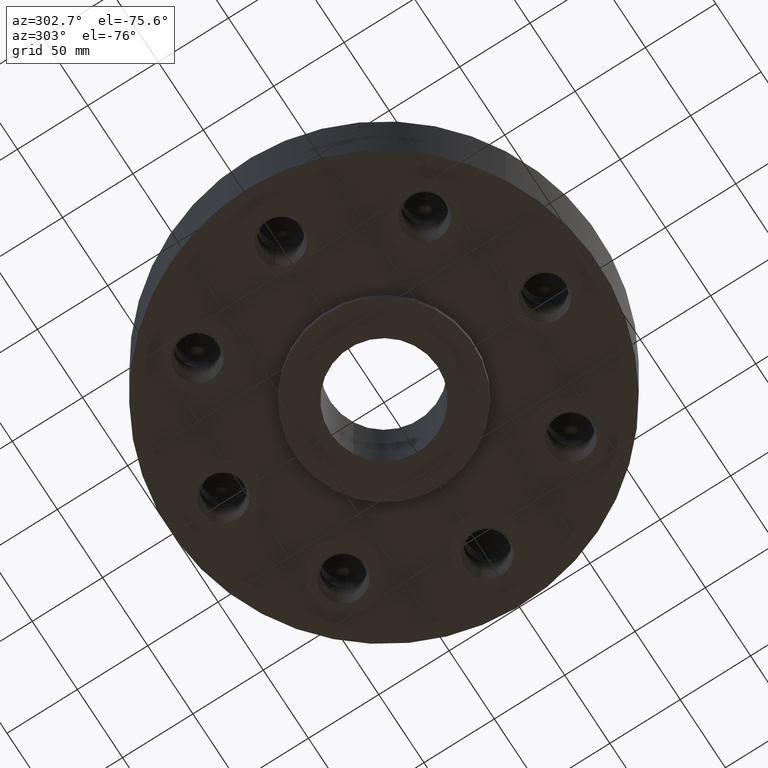
[diagram: clean part render]
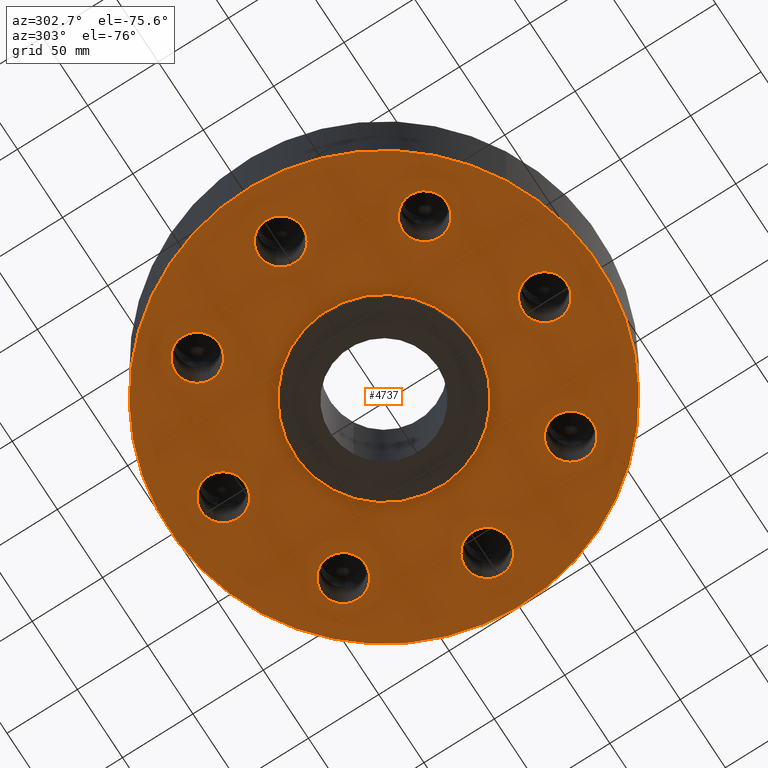
[diagram: same view with one face highlighted and labeled with its STEP entity id]
A machine part, auxiliary view. The second image highlights one B-rep face of the part: STEP entity #4737.
In plain terms, the highlighted planar face has unit normal (0, 0, -1).
Its self-contained STEP definition (entity closure, byte-faithful):
#4304=AXIS2_PLACEMENT_3D('Circle Axis2P3D',#4302,#4303,$) ;
#4324=AXIS2_PLACEMENT_3D('Circle Axis2P3D',#4322,#4323,$) ;
#4344=AXIS2_PLACEMENT_3D('Circle Axis2P3D',#4342,#4343,$) ;
#4356=AXIS2_PLACEMENT_3D('Plane Axis2P3D',#4353,#4354,#4355) ;
#4360=AXIS2_PLACEMENT_3D('Circle Axis2P3D',#4358,#4359,$) ;
#4369=AXIS2_PLACEMENT_3D('Circle Axis2P3D',#4367,#4368,$) ;
#4385=AXIS2_PLACEMENT_3D('Circle Axis2P3D',#4383,#4384,$) ;
#4394=AXIS2_PLACEMENT_3D('Circle Axis2P3D',#4392,#4393,$) ;
#4403=AXIS2_PLACEMENT_3D('Circle Axis2P3D',#4401,#4402,$) ;
#4412=AXIS2_PLACEMENT_3D('Circle Axis2P3D',#4410,#4411,$) ;
#4419=AXIS2_PLACEMENT_3D('Circle Axis2P3D',#4417,#4418,$) ;
#4451=AXIS2_PLACEMENT_3D('Circle Axis2P3D',#4449,#4450,$) ;
#4460=AXIS2_PLACEMENT_3D('Circle Axis2P3D',#4458,#4459,$) ;
#4467=AXIS2_PLACEMENT_3D('Circle Axis2P3D',#4465,#4466,$) ;
#4499=AXIS2_PLACEMENT_3D('Circle Axis2P3D',#4497,#4498,$) ;
#4508=AXIS2_PLACEMENT_3D('Circle Axis2P3D',#4506,#4507,$) ;
#4515=AXIS2_PLACEMENT_3D('Circle Axis2P3D',#4513,#4514,$) ;
#4547=AXIS2_PLACEMENT_3D('Circle Axis2P3D',#4545,#4546,$) ;
#4556=AXIS2_PLACEMENT_3D('Circle Axis2P3D',#4554,#4555,$) ;
#4563=AXIS2_PLACEMENT_3D('Circle Axis2P3D',#4561,#4562,$) ;
#4595=AXIS2_PLACEMENT_3D('Circle Axis2P3D',#4593,#4594,$) ;
#4604=AXIS2_PLACEMENT_3D('Circle Axis2P3D',#4602,#4603,$) ;
#4611=AXIS2_PLACEMENT_3D('Circle Axis2P3D',#4609,#4610,$) ;
#4643=AXIS2_PLACEMENT_3D('Circle Axis2P3D',#4641,#4642,$) ;
#4652=AXIS2_PLACEMENT_3D('Circle Axis2P3D',#4650,#4651,$) ;
#4659=AXIS2_PLACEMENT_3D('Circle Axis2P3D',#4657,#4658,$) ;
#4691=AXIS2_PLACEMENT_3D('Circle Axis2P3D',#4689,#4690,$) ;
#4700=AXIS2_PLACEMENT_3D('Circle Axis2P3D',#4698,#4699,$) ;
#4707=AXIS2_PLACEMENT_3D('Circle Axis2P3D',#4705,#4706,$) ;
#4021=CARTESIAN_POINT('Vertex',(3.18198051535,2.55698051535,-3.58199908929E-014)) ;
#4240=CARTESIAN_POINT('Vertex',(3.25873607268,2.56423069996,0.)) ;
#4244=CARTESIAN_POINT('Control Point',(3.18198051535,2.55698051535,-3.57937651522E-014)) ;
#4245=CARTESIAN_POINT('Control Point',(3.20770871475,2.55781348545,-3.57933954732E-014)) ;
#4246=CARTESIAN_POINT('Control Point',(3.2333606404,2.56023796833,-5.5872213125E-012)) ;
#4247=CARTESIAN_POINT('Control Point',(3.25873603664,2.56423061022,-5.54177001751E-012)) ;
#4277=CARTESIAN_POINT('Control Point',(3.18198051535,2.55698051535,1.31128703614E-017)) ;
#4278=CARTESIAN_POINT('Control Point',(3.15626858779,2.55781295862,1.36054639739E-017)) ;
#4279=CARTESIAN_POINT('Control Point',(3.13063258452,2.56023495611,-3.87205028355E-011)) ;
#4280=CARTESIAN_POINT('Control Point',(3.10526891302,2.56422507147,-1.17698683258E-010)) ;
#4281=CARTESIAN_POINT('Vertex',(3.10526892041,2.56422523921,0.)) ;
#4302=CARTESIAN_POINT('Axis2P3D Location',(3.18198051535,3.18198051535,0.)) ;
#4306=CARTESIAN_POINT('Vertex',(2.63568537057,2.88353811757,0.)) ;
#4322=CARTESIAN_POINT('Axis2P3D Location',(3.18198051535,3.18198051535,0.)) ;
#4326=CARTESIAN_POINT('Vertex',(3.72827566013,3.48042291313,0.)) ;
#4342=CARTESIAN_POINT('Axis2P3D Location',(3.18198051535,3.18198051535,0.)) ;
#4353=CARTESIAN_POINT('Axis2P3D Location',(0.,6.00000000002,0.)) ;
#4358=CARTESIAN_POINT('Axis2P3D Location',(0.,0.,0.)) ;
#4362=CARTESIAN_POINT('Vertex',(-2.87655323164,-5.26549537136,-3.9583384689E-014)) ;
#4364=CARTESIAN_POINT('Vertex',(2.87655323164,5.26549537136,-3.9583384689E-014)) ;
#4367=CARTESIAN_POINT('Axis2P3D Location',(0.,0.,0.)) ;
#4383=CARTESIAN_POINT('Axis2P3D Location',(0.,0.,0.)) ;
#4387=CARTESIAN_POINT('Vertex',(1.19856384652,2.19395640473,-2.83937353069E-014)) ;
#4389=CARTESIAN_POINT('Vertex',(-1.19856384652,-2.19395640473,-2.83937353069E-014)) ;
#4392=CARTESIAN_POINT('Axis2P3D Location',(0.,0.,0.)) ;
#4401=CARTESIAN_POINT('Axis2P3D Location',(4.50000000002,1.1189649382E-015,0.)) ;
#4405=CARTESIAN_POINT('Vertex',(5.09731964469,-0.175258358137,0.)) ;
#4407=CARTESIAN_POINT('Vertex',(4.11745929156,-0.491089458625,0.)) ;
#4410=CARTESIAN_POINT('Axis2P3D Location',(4.50000000002,0.,0.)) ;
#4414=CARTESIAN_POINT('Vertex',(3.90268035535,0.175258358137,1.48612530855E-016)) ;
#4417=CARTESIAN_POINT('Axis2P3D Location',(4.50000000002,1.1189649382E-015,0.)) ;
#4421=CARTESIAN_POINT('Vertex',(4.00893776617,-0.382575655905,0.)) ;
#4425=CARTESIAN_POINT('Control Point',(4.05805826177,-0.441941738243,0.)) ;
#4426=CARTESIAN_POINT('Control Point',(4.04750279054,-0.430679915473,0.)) ;
#4427=CARTESIAN_POINT('Control Point',(4.03730014764,-0.419097395786,0.)) ;
#4428=CARTESIAN_POINT('Control Point',(4.02746366877,-0.407208759773,0.)) ;
#4429=CARTESIAN_POINT('Control Point',(4.01800574792,-0.395029457231,0.)) ;
#4430=CARTESIAN_POINT('Control Point',(4.00893776617,-0.382575655905,0.)) ;
#4431=CARTESIAN_POINT('Vertex',(4.05805826177,-0.441941738243,-3.58199908929E-014)) ;
#4435=CARTESIAN_POINT('Control Point',(4.05805826177,-0.441941738243,0.)) ;
#4436=CARTESIAN_POINT('Control Point',(4.06932721162,-0.452503889519,0.)) ;
#4437=CARTESIAN_POINT('Control Point',(4.0809172647,-0.462712765541,0.)) ;
#4438=CARTESIAN_POINT('Control Point',(4.09281329542,-0.472554824069,0.)) ;
#4439=CARTESIAN_POINT('Control Point',(4.10499945806,-0.482017537797,0.)) ;
#4440=CARTESIAN_POINT('Control Point',(4.11745929156,-0.491089458625,0.)) ;
#4449=CARTESIAN_POINT('Axis2P3D Location',(3.18198051535,-3.18198051535,0.)) ;
#4453=CARTESIAN_POINT('Vertex',(3.48042291313,-3.72827566013,0.)) ;
#4455=CARTESIAN_POINT('Vertex',(2.56423069996,-3.25873607268,0.)) ;
#4458=CARTESIAN_POINT('Axis2P3D Location',(3.18198051535,-3.18198051535,0.)) ;
#4462=CARTESIAN_POINT('Vertex',(2.88353811757,-2.63568537057,0.)) ;
#4465=CARTESIAN_POINT('Axis2P3D Location',(3.18198051535,-3.18198051535,0.)) ;
#4469=CARTESIAN_POINT('Vertex',(2.56422523921,-3.10526892041,0.)) ;
#4473=CARTESIAN_POINT('Control Point',(2.55698051535,-3.18198051535,0.)) ;
#4474=CARTESIAN_POINT('Control Point',(2.55747998131,-3.16655335881,0.)) ;
#4475=CARTESIAN_POINT('Control Point',(2.55845570154,-3.15114892261,0.)) ;
#4476=CARTESIAN_POINT('Control Point',(2.55990679578,-3.13578694656,0.)) ;
#4477=CARTESIAN_POINT('Control Point',(2.56183110322,-3.12048711917,0.)) ;
#4478=CARTESIAN_POINT('Control Point',(2.56422523921,-3.10526892041,0.)) ;
#4479=CARTESIAN_POINT('Vertex',(2.55698051535,-3.18198051535,-3.58199908929E-014)) ;
#4483=CARTESIAN_POINT('Control Point',(2.55698051535,-3.18198051535,0.)) ;
#4484=CARTESIAN_POINT('Control Point',(2.55748029741,-3.19741743499,0.)) ;
#4485=CARTESIAN_POINT('Control Point',(2.55845693708,-3.21283160559,0.)) ;
#4486=CARTESIAN_POINT('Control Point',(2.55990931474,-3.22820275591,0.)) ;
#4487=CARTESIAN_POINT('Control Point',(2.56183508394,-3.24351082319,0.)) ;
#4488=CARTESIAN_POINT('Control Point',(2.56423069996,-3.25873607268,0.)) ;
#4497=CARTESIAN_POINT('Axis2P3D Location',(7.69288395016E-016,-4.50000000002,0.)) ;
#4501=CARTESIAN_POINT('Vertex',(-0.175258358137,-5.09731964469,0.)) ;
#4503=CARTESIAN_POINT('Vertex',(-0.491089458625,-4.11745929156,0.)) ;
#4506=CARTESIAN_POINT('Axis2P3D Location',(1.18890024684E-015,-4.50000000002,0.)) ;
#4510=CARTESIAN_POINT('Vertex',(0.175258358137,-3.90268035535,0.)) ;
#4513=CARTESIAN_POINT('Axis2P3D Location',(7.69288395016E-016,-4.50000000002,0.)) ;
#4517=CARTESIAN_POINT('Vertex',(-0.382575655901,-4.00893776617,0.)) ;
#4521=CARTESIAN_POINT('Control Point',(-0.441941738243,-4.05805826177,0.)) ;
#4522=CARTESIAN_POINT('Control Point',(-0.430679915473,-4.04750279054,0.)) ;
#4523=CARTESIAN_POINT('Control Point',(-0.419097395785,-4.03730014764,0.)) ;
#4524=CARTESIAN_POINT('Control Point',(-0.407208759771,-4.02746366877,0.)) ;
#4525=CARTESIAN_POINT('Control Point',(-0.395029457228,-4.01800574792,0.)) ;
#4526=CARTESIAN_POINT('Control Point',(-0.382575655901,-4.00893776617,0.)) ;
#4527=CARTESIAN_POINT('Vertex',(-0.441941738243,-4.05805826177,-3.58199908929E-014)) ;
#4531=CARTESIAN_POINT('Control Point',(-0.441941738243,-4.05805826177,0.)) ;
#4532=CARTESIAN_POINT('Control Point',(-0.452503889519,-4.06932721162,0.)) ;
#4533=CARTESIAN_POINT('Control Point',(-0.46271276554,-4.0809172647,0.)) ;
#4534=CARTESIAN_POINT('Control Point',(-0.472554824068,-4.09281329542,0.)) ;
#4535=CARTESIAN_POINT('Control Point',(-0.482017537797,-4.10499945806,0.)) ;
#4536=CARTESIAN_POINT('Control Point',(-0.491089458625,-4.11745929156,0.)) ;
#4545=CARTESIAN_POINT('Axis2P3D Location',(-3.18198051535,-3.18198051535,0.)) ;
#4549=CARTESIAN_POINT('Vertex',(-3.72827566013,-3.48042291313,0.)) ;
#4551=CARTESIAN_POINT('Vertex',(-3.25873607269,-2.56423069996,0.)) ;
#4554=CARTESIAN_POINT('Axis2P3D Location',(-3.18198051535,-3.18198051535,0.)) ;
#4558=CARTESIAN_POINT('Vertex',(-2.63568537057,-2.88353811757,0.)) ;
#4561=CARTESIAN_POINT('Axis2P3D Location',(-3.18198051535,-3.18198051535,0.)) ;
#4565=CARTESIAN_POINT('Vertex',(-3.10526892041,-2.56422523921,0.)) ;
#4569=CARTESIAN_POINT('Control Point',(-3.18198051535,-2.55698051535,0.)) ;
#4570=CARTESIAN_POINT('Control Point',(-3.16655335881,-2.55747998131,0.)) ;
#4571=CARTESIAN_POINT('Control Point',(-3.15114892261,-2.55845570154,0.)) ;
#4572=CARTESIAN_POINT('Control Point',(-3.13578694656,-2.55990679578,0.)) ;
#4573=CARTESIAN_POINT('Control Point',(-3.12048711917,-2.56183110322,0.)) ;
#4574=CARTESIAN_POINT('Control Point',(-3.10526892041,-2.56422523921,0.)) ;
#4575=CARTESIAN_POINT('Vertex',(-3.18198051535,-2.55698051535,-3.58199908929E-014)) ;
#4579=CARTESIAN_POINT('Control Point',(-3.18198051535,-2.55698051535,0.)) ;
#4580=CARTESIAN_POINT('Control Point',(-3.19741743499,-2.55748029741,0.)) ;
#4581=CARTESIAN_POINT('Control Point',(-3.21283160559,-2.55845693708,0.)) ;
#4582=CARTESIAN_POINT('Control Point',(-3.22820275591,-2.55990931474,0.)) ;
#4583=CARTESIAN_POINT('Control Point',(-3.2435108232,-2.56183508394,0.)) ;
#4584=CARTESIAN_POINT('Control Point',(-3.25873607269,-2.56423069996,0.)) ;
#4593=CARTESIAN_POINT('Axis2P3D Location',(-4.50000000002,0.,0.)) ;
#4597=CARTESIAN_POINT('Vertex',(-5.09731964469,0.175258358137,0.)) ;
#4599=CARTESIAN_POINT('Vertex',(-4.11745929156,0.491089458627,0.)) ;
#4602=CARTESIAN_POINT('Axis2P3D Location',(-4.50000000002,-1.1189649382E-015,0.)) ;
#4606=CARTESIAN_POINT('Vertex',(-3.90268035535,-0.175258358137,0.)) ;
#4609=CARTESIAN_POINT('Axis2P3D Location',(-4.50000000002,0.,0.)) ;
#4613=CARTESIAN_POINT('Vertex',(-4.00893776617,0.3825756559,0.)) ;
#4617=CARTESIAN_POINT('Control Point',(-4.05805826177,0.441941738243,0.)) ;
#4618=CARTESIAN_POINT('Control Point',(-4.04750279054,0.430679915472,0.)) ;
#4619=CARTESIAN_POINT('Control Point',(-4.03730014764,0.419097395784,0.)) ;
#4620=CARTESIAN_POINT('Control Point',(-4.02746366877,0.40720875977,0.)) ;
#4621=CARTESIAN_POINT('Control Point',(-4.01800574792,0.395029457227,0.)) ;
#4622=CARTESIAN_POINT('Control Point',(-4.00893776617,0.3825756559,0.)) ;
#4623=CARTESIAN_POINT('Vertex',(-4.05805826177,0.441941738243,-3.58199908929E-014)) ;
#4627=CARTESIAN_POINT('Control Point',(-4.05805826177,0.441941738243,0.)) ;
#4628=CARTESIAN_POINT('Control Point',(-4.06932721162,0.452503889519,0.)) ;
#4629=CARTESIAN_POINT('Control Point',(-4.08091726471,0.462712765542,0.)) ;
#4630=CARTESIAN_POINT('Control Point',(-4.09281329543,0.47255482407,0.)) ;
#4631=CARTESIAN_POINT('Control Point',(-4.10499945806,0.482017537799,0.)) ;
#4632=CARTESIAN_POINT('Control Point',(-4.11745929156,0.491089458627,0.)) ;
#4641=CARTESIAN_POINT('Axis2P3D Location',(-3.18198051535,3.18198051535,0.)) ;
#4645=CARTESIAN_POINT('Vertex',(-3.48042291313,3.72827566013,0.)) ;
#4647=CARTESIAN_POINT('Vertex',(-2.56423069996,3.25873607269,0.)) ;
#4650=CARTESIAN_POINT('Axis2P3D Location',(-3.18198051535,3.18198051535,0.)) ;
#4654=CARTESIAN_POINT('Vertex',(-2.88353811757,2.63568537057,0.)) ;
#4657=CARTESIAN_POINT('Axis2P3D Location',(-3.18198051535,3.18198051535,0.)) ;
#4661=CARTESIAN_POINT('Vertex',(-2.56422523921,3.10526892042,0.)) ;
#4665=CARTESIAN_POINT('Control Point',(-2.55698051535,3.18198051535,0.)) ;
#4666=CARTESIAN_POINT('Control Point',(-2.55747998131,3.16655335882,0.)) ;
#4667=CARTESIAN_POINT('Control Point',(-2.55845570154,3.15114892262,0.)) ;
#4668=CARTESIAN_POINT('Control Point',(-2.55990679578,3.13578694656,0.)) ;
#4669=CARTESIAN_POINT('Control Point',(-2.56183110322,3.12048711917,0.)) ;
#4670=CARTESIAN_POINT('Control Point',(-2.56422523921,3.10526892042,0.)) ;
#4671=CARTESIAN_POINT('Vertex',(-2.55698051535,3.18198051535,-3.58199908929E-014)) ;
#4675=CARTESIAN_POINT('Control Point',(-2.55698051535,3.18198051535,0.)) ;
#4676=CARTESIAN_POINT('Control Point',(-2.55748029741,3.19741743499,0.)) ;
#4677=CARTESIAN_POINT('Control Point',(-2.55845693708,3.21283160559,0.)) ;
#4678=CARTESIAN_POINT('Control Point',(-2.55990931474,3.22820275591,0.)) ;
#4679=CARTESIAN_POINT('Control Point',(-2.56183508394,3.24351082319,0.)) ;
#4680=CARTESIAN_POINT('Control Point',(-2.56423069996,3.25873607269,0.)) ;
#4689=CARTESIAN_POINT('Axis2P3D Location',(-1.39870617276E-015,4.50000000002,0.)) ;
#4693=CARTESIAN_POINT('Vertex',(0.175258358137,5.09731964469,0.)) ;
#4695=CARTESIAN_POINT('Vertex',(0.491089458628,4.11745929156,0.)) ;
#4698=CARTESIAN_POINT('Axis2P3D Location',(-2.16799456777E-015,4.50000000002,0.)) ;
#4702=CARTESIAN_POINT('Vertex',(-0.175258358137,3.90268035535,1.74838271595E-016)) ;
#4705=CARTESIAN_POINT('Axis2P3D Location',(-1.39870617276E-015,4.50000000002,0.)) ;
#4709=CARTESIAN_POINT('Vertex',(0.382575655899,4.00893776617,0.)) ;
#4713=CARTESIAN_POINT('Control Point',(0.441941738243,4.05805826177,0.)) ;
#4714=CARTESIAN_POINT('Control Point',(0.430679915472,4.04750279054,0.)) ;
#4715=CARTESIAN_POINT('Control Point',(0.419097395784,4.03730014764,0.)) ;
#4716=CARTESIAN_POINT('Control Point',(0.40720875977,4.02746366877,0.)) ;
#4717=CARTESIAN_POINT('Control Point',(0.395029457227,4.01800574791,0.)) ;
#4718=CARTESIAN_POINT('Control Point',(0.382575655899,4.00893776617,0.)) ;
#4719=CARTESIAN_POINT('Vertex',(0.441941738243,4.05805826177,-3.58199908929E-014)) ;
#4723=CARTESIAN_POINT('Control Point',(0.441941738243,4.05805826177,0.)) ;
#4724=CARTESIAN_POINT('Control Point',(0.45250388952,4.06932721162,0.)) ;
#4725=CARTESIAN_POINT('Control Point',(0.462712765542,4.08091726471,0.)) ;
#4726=CARTESIAN_POINT('Control Point',(0.472554824071,4.09281329543,0.)) ;
#4727=CARTESIAN_POINT('Control Point',(0.4820175378,4.10499945807,0.)) ;
#4728=CARTESIAN_POINT('Control Point',(0.491089458628,4.11745929156,0.)) ;
#4303=DIRECTION('Axis2P3D Direction',(0.,0.,-0.0393700787402)) ;
#4323=DIRECTION('Axis2P3D Direction',(0.,0.,-0.0393700787402)) ;
#4343=DIRECTION('Axis2P3D Direction',(0.,0.,-0.0393700787402)) ;
#4354=DIRECTION('Axis2P3D Direction',(0.,0.,-0.0393700787402)) ;
#4355=DIRECTION('Axis2P3D XDirection',(0.0393700787402,0.,0.)) ;
#4359=DIRECTION('Axis2P3D Direction',(0.,0.,-0.0393700787402)) ;
#4368=DIRECTION('Axis2P3D Direction',(0.,0.,-0.0393700787402)) ;
#4384=DIRECTION('Axis2P3D Direction',(0.,0.,-0.0393700787402)) ;
#4393=DIRECTION('Axis2P3D Direction',(0.,0.,-0.0393700787402)) ;
#4402=DIRECTION('Axis2P3D Direction',(0.,0.,-0.0393700787402)) ;
#4411=DIRECTION('Axis2P3D Direction',(0.,0.,-0.0393700787402)) ;
#4418=DIRECTION('Axis2P3D Direction',(0.,0.,-0.0393700787402)) ;
#4450=DIRECTION('Axis2P3D Direction',(0.,0.,-0.0393700787402)) ;
#4459=DIRECTION('Axis2P3D Direction',(0.,0.,-0.0393700787402)) ;
#4466=DIRECTION('Axis2P3D Direction',(0.,0.,-0.0393700787402)) ;
#4498=DIRECTION('Axis2P3D Direction',(0.,0.,-0.0393700787402)) ;
#4507=DIRECTION('Axis2P3D Direction',(0.,0.,-0.0393700787402)) ;
#4514=DIRECTION('Axis2P3D Direction',(0.,0.,-0.0393700787402)) ;
#4546=DIRECTION('Axis2P3D Direction',(0.,0.,-0.0393700787402)) ;
#4555=DIRECTION('Axis2P3D Direction',(0.,0.,-0.0393700787402)) ;
#4562=DIRECTION('Axis2P3D Direction',(0.,0.,-0.0393700787402)) ;
#4594=DIRECTION('Axis2P3D Direction',(0.,0.,-0.0393700787402)) ;
#4603=DIRECTION('Axis2P3D Direction',(0.,0.,-0.0393700787402)) ;
#4610=DIRECTION('Axis2P3D Direction',(0.,0.,-0.0393700787402)) ;
#4642=DIRECTION('Axis2P3D Direction',(0.,0.,-0.0393700787402)) ;
#4651=DIRECTION('Axis2P3D Direction',(0.,0.,-0.0393700787402)) ;
#4658=DIRECTION('Axis2P3D Direction',(0.,0.,-0.0393700787402)) ;
#4690=DIRECTION('Axis2P3D Direction',(0.,0.,-0.0393700787402)) ;
#4699=DIRECTION('Axis2P3D Direction',(0.,0.,-0.0393700787402)) ;
#4706=DIRECTION('Axis2P3D Direction',(0.,0.,-0.0393700787402)) ;
#4373=ORIENTED_EDGE('',*,*,#4366,.T.) ;
#4374=ORIENTED_EDGE('',*,*,#4371,.T.) ;
#4377=ORIENTED_EDGE('',*,*,#4346,.F.) ;
#4378=ORIENTED_EDGE('',*,*,#4328,.F.) ;
#4379=ORIENTED_EDGE('',*,*,#4308,.F.) ;
#4380=ORIENTED_EDGE('',*,*,#4283,.F.) ;
#4381=ORIENTED_EDGE('',*,*,#4248,.T.) ;
#4398=ORIENTED_EDGE('',*,*,#4391,.F.) ;
#4399=ORIENTED_EDGE('',*,*,#4396,.F.) ;
#4443=ORIENTED_EDGE('',*,*,#4409,.F.) ;
#4444=ORIENTED_EDGE('',*,*,#4416,.F.) ;
#4445=ORIENTED_EDGE('',*,*,#4423,.F.) ;
#4446=ORIENTED_EDGE('',*,*,#4433,.F.) ;
#4447=ORIENTED_EDGE('',*,*,#4441,.T.) ;
#4491=ORIENTED_EDGE('',*,*,#4457,.F.) ;
#4492=ORIENTED_EDGE('',*,*,#4464,.F.) ;
#4493=ORIENTED_EDGE('',*,*,#4471,.F.) ;
#4494=ORIENTED_EDGE('',*,*,#4481,.F.) ;
#4495=ORIENTED_EDGE('',*,*,#4489,.T.) ;
#4539=ORIENTED_EDGE('',*,*,#4505,.F.) ;
#4540=ORIENTED_EDGE('',*,*,#4512,.F.) ;
#4541=ORIENTED_EDGE('',*,*,#4519,.F.) ;
#4542=ORIENTED_EDGE('',*,*,#4529,.F.) ;
#4543=ORIENTED_EDGE('',*,*,#4537,.T.) ;
#4587=ORIENTED_EDGE('',*,*,#4553,.F.) ;
#4588=ORIENTED_EDGE('',*,*,#4560,.F.) ;
#4589=ORIENTED_EDGE('',*,*,#4567,.F.) ;
#4590=ORIENTED_EDGE('',*,*,#4577,.F.) ;
#4591=ORIENTED_EDGE('',*,*,#4585,.T.) ;
#4635=ORIENTED_EDGE('',*,*,#4601,.F.) ;
#4636=ORIENTED_EDGE('',*,*,#4608,.F.) ;
#4637=ORIENTED_EDGE('',*,*,#4615,.F.) ;
#4638=ORIENTED_EDGE('',*,*,#4625,.F.) ;
#4639=ORIENTED_EDGE('',*,*,#4633,.T.) ;
#4683=ORIENTED_EDGE('',*,*,#4649,.F.) ;
#4684=ORIENTED_EDGE('',*,*,#4656,.F.) ;
#4685=ORIENTED_EDGE('',*,*,#4663,.F.) ;
#4686=ORIENTED_EDGE('',*,*,#4673,.F.) ;
#4687=ORIENTED_EDGE('',*,*,#4681,.T.) ;
#4731=ORIENTED_EDGE('',*,*,#4697,.F.) ;
#4732=ORIENTED_EDGE('',*,*,#4704,.F.) ;
#4733=ORIENTED_EDGE('',*,*,#4711,.F.) ;
#4734=ORIENTED_EDGE('',*,*,#4721,.F.) ;
#4735=ORIENTED_EDGE('',*,*,#4729,.T.) ;
#4382=FACE_BOUND('',#4376,.T.) ;
#4400=FACE_BOUND('',#4397,.T.) ;
#4448=FACE_BOUND('',#4442,.T.) ;
#4496=FACE_BOUND('',#4490,.T.) ;
#4544=FACE_BOUND('',#4538,.T.) ;
#4592=FACE_BOUND('',#4586,.T.) ;
#4640=FACE_BOUND('',#4634,.T.) ;
#4688=FACE_BOUND('',#4682,.T.) ;
#4736=FACE_BOUND('',#4730,.T.) ;
#4737=ADVANCED_FACE('PartBody',(#4375,#4382,#4400,#4448,#4496,#4544,#4592,#4640,#4688,#4736),#4357,.T.) ;
#4243=B_SPLINE_CURVE_WITH_KNOTS('',3,(#4244,#4245,#4246,#4247),.UNSPECIFIED.,.F.,.U.,(4,4),(0.,2.7064390948),.UNSPECIFIED.) ;
#4276=B_SPLINE_CURVE_WITH_KNOTS('',3,(#4277,#4278,#4279,#4280),.UNSPECIFIED.,.F.,.U.,(4,4),(0.,2.70472740326),.UNSPECIFIED.) ;
#4424=B_SPLINE_CURVE_WITH_KNOTS('',5,(#4425,#4426,#4427,#4428,#4429,#4430),.UNSPECIFIED.,.F.,.U.,(6,6),(0.,2.7047274027),.UNSPECIFIED.) ;
#4434=B_SPLINE_CURVE_WITH_KNOTS('',5,(#4435,#4436,#4437,#4438,#4439,#4440),.UNSPECIFIED.,.F.,.U.,(6,6),(0.,2.7064390947),.UNSPECIFIED.) ;
#4472=B_SPLINE_CURVE_WITH_KNOTS('',5,(#4473,#4474,#4475,#4476,#4477,#4478),.UNSPECIFIED.,.F.,.U.,(6,6),(0.,2.70472740302),.UNSPECIFIED.) ;
#4482=B_SPLINE_CURVE_WITH_KNOTS('',5,(#4483,#4484,#4485,#4486,#4487,#4488),.UNSPECIFIED.,.F.,.U.,(6,6),(0.,2.70643909481),.UNSPECIFIED.) ;
#4520=B_SPLINE_CURVE_WITH_KNOTS('',5,(#4521,#4522,#4523,#4524,#4525,#4526),.UNSPECIFIED.,.F.,.U.,(6,6),(0.,2.70472740286),.UNSPECIFIED.) ;
#4530=B_SPLINE_CURVE_WITH_KNOTS('',5,(#4531,#4532,#4533,#4534,#4535,#4536),.UNSPECIFIED.,.F.,.U.,(6,6),(0.,2.70643909464),.UNSPECIFIED.) ;
#4568=B_SPLINE_CURVE_WITH_KNOTS('',5,(#4569,#4570,#4571,#4572,#4573,#4574),.UNSPECIFIED.,.F.,.U.,(6,6),(0.,2.70472740303),.UNSPECIFIED.) ;
#4578=B_SPLINE_CURVE_WITH_KNOTS('',5,(#4579,#4580,#4581,#4582,#4583,#4584),.UNSPECIFIED.,.F.,.U.,(6,6),(0.,2.70643909494),.UNSPECIFIED.) ;
#4616=B_SPLINE_CURVE_WITH_KNOTS('',5,(#4617,#4618,#4619,#4620,#4621,#4622),.UNSPECIFIED.,.F.,.U.,(6,6),(0.,2.70472740294),.UNSPECIFIED.) ;
#4626=B_SPLINE_CURVE_WITH_KNOTS('',5,(#4627,#4628,#4629,#4630,#4631,#4632),.UNSPECIFIED.,.F.,.U.,(6,6),(0.,2.70643909482),.UNSPECIFIED.) ;
#4664=B_SPLINE_CURVE_WITH_KNOTS('',5,(#4665,#4666,#4667,#4668,#4669,#4670),.UNSPECIFIED.,.F.,.U.,(6,6),(0.,2.70472740285),.UNSPECIFIED.) ;
#4674=B_SPLINE_CURVE_WITH_KNOTS('',5,(#4675,#4676,#4677,#4678,#4679,#4680),.UNSPECIFIED.,.F.,.U.,(6,6),(0.,2.70643909489),.UNSPECIFIED.) ;
#4712=B_SPLINE_CURVE_WITH_KNOTS('',5,(#4713,#4714,#4715,#4716,#4717,#4718),.UNSPECIFIED.,.F.,.U.,(6,6),(0.,2.70472740296),.UNSPECIFIED.) ;
#4722=B_SPLINE_CURVE_WITH_KNOTS('',5,(#4723,#4724,#4725,#4726,#4727,#4728),.UNSPECIFIED.,.F.,.U.,(6,6),(0.,2.7064390949),.UNSPECIFIED.) ;
#4305=CIRCLE('generated circle',#4304,0.622500000002) ;
#4325=CIRCLE('generated circle',#4324,0.622500000002) ;
#4345=CIRCLE('generated circle',#4344,0.622500000002) ;
#4361=CIRCLE('generated circle',#4360,6.00000000002) ;
#4370=CIRCLE('generated circle',#4369,6.00000000002) ;
#4386=CIRCLE('generated circle',#4385,2.50000000001) ;
#4395=CIRCLE('generated circle',#4394,2.50000000001) ;
#4404=CIRCLE('generated circle',#4403,0.622500000002) ;
#4413=CIRCLE('generated circle',#4412,0.622500000002) ;
#4420=CIRCLE('generated circle',#4419,0.622500000002) ;
#4452=CIRCLE('generated circle',#4451,0.622500000002) ;
#4461=CIRCLE('generated circle',#4460,0.622500000002) ;
#4468=CIRCLE('generated circle',#4467,0.622500000002) ;
#4500=CIRCLE('generated circle',#4499,0.622500000002) ;
#4509=CIRCLE('generated circle',#4508,0.622500000002) ;
#4516=CIRCLE('generated circle',#4515,0.622500000002) ;
#4548=CIRCLE('generated circle',#4547,0.622500000002) ;
#4557=CIRCLE('generated circle',#4556,0.622500000002) ;
#4564=CIRCLE('generated circle',#4563,0.622500000002) ;
#4596=CIRCLE('generated circle',#4595,0.622500000002) ;
#4605=CIRCLE('generated circle',#4604,0.622500000002) ;
#4612=CIRCLE('generated circle',#4611,0.622500000002) ;
#4644=CIRCLE('generated circle',#4643,0.622500000002) ;
#4653=CIRCLE('generated circle',#4652,0.622500000002) ;
#4660=CIRCLE('generated circle',#4659,0.622500000002) ;
#4692=CIRCLE('generated circle',#4691,0.622500000002) ;
#4701=CIRCLE('generated circle',#4700,0.622500000002) ;
#4708=CIRCLE('generated circle',#4707,0.622500000002) ;
#4248=EDGE_CURVE('',#4022,#4241,#4243,.T.) ;
#4283=EDGE_CURVE('',#4022,#4282,#4276,.T.) ;
#4308=EDGE_CURVE('',#4282,#4307,#4305,.T.) ;
#4328=EDGE_CURVE('',#4307,#4327,#4325,.T.) ;
#4346=EDGE_CURVE('',#4327,#4241,#4345,.T.) ;
#4366=EDGE_CURVE('',#4363,#4365,#4361,.T.) ;
#4371=EDGE_CURVE('',#4365,#4363,#4370,.T.) ;
#4391=EDGE_CURVE('',#4388,#4390,#4386,.T.) ;
#4396=EDGE_CURVE('',#4390,#4388,#4395,.T.) ;
#4409=EDGE_CURVE('',#4406,#4408,#4404,.T.) ;
#4416=EDGE_CURVE('',#4415,#4406,#4413,.T.) ;
#4423=EDGE_CURVE('',#4422,#4415,#4420,.T.) ;
#4433=EDGE_CURVE('',#4432,#4422,#4424,.T.) ;
#4441=EDGE_CURVE('',#4432,#4408,#4434,.T.) ;
#4457=EDGE_CURVE('',#4454,#4456,#4452,.T.) ;
#4464=EDGE_CURVE('',#4463,#4454,#4461,.T.) ;
#4471=EDGE_CURVE('',#4470,#4463,#4468,.T.) ;
#4481=EDGE_CURVE('',#4480,#4470,#4472,.T.) ;
#4489=EDGE_CURVE('',#4480,#4456,#4482,.T.) ;
#4505=EDGE_CURVE('',#4502,#4504,#4500,.T.) ;
#4512=EDGE_CURVE('',#4511,#4502,#4509,.T.) ;
#4519=EDGE_CURVE('',#4518,#4511,#4516,.T.) ;
#4529=EDGE_CURVE('',#4528,#4518,#4520,.T.) ;
#4537=EDGE_CURVE('',#4528,#4504,#4530,.T.) ;
#4553=EDGE_CURVE('',#4550,#4552,#4548,.T.) ;
#4560=EDGE_CURVE('',#4559,#4550,#4557,.T.) ;
#4567=EDGE_CURVE('',#4566,#4559,#4564,.T.) ;
#4577=EDGE_CURVE('',#4576,#4566,#4568,.T.) ;
#4585=EDGE_CURVE('',#4576,#4552,#4578,.T.) ;
#4601=EDGE_CURVE('',#4598,#4600,#4596,.T.) ;
#4608=EDGE_CURVE('',#4607,#4598,#4605,.T.) ;
#4615=EDGE_CURVE('',#4614,#4607,#4612,.T.) ;
#4625=EDGE_CURVE('',#4624,#4614,#4616,.T.) ;
#4633=EDGE_CURVE('',#4624,#4600,#4626,.T.) ;
#4649=EDGE_CURVE('',#4646,#4648,#4644,.T.) ;
#4656=EDGE_CURVE('',#4655,#4646,#4653,.T.) ;
#4663=EDGE_CURVE('',#4662,#4655,#4660,.T.) ;
#4673=EDGE_CURVE('',#4672,#4662,#4664,.T.) ;
#4681=EDGE_CURVE('',#4672,#4648,#4674,.T.) ;
#4697=EDGE_CURVE('',#4694,#4696,#4692,.T.) ;
#4704=EDGE_CURVE('',#4703,#4694,#4701,.T.) ;
#4711=EDGE_CURVE('',#4710,#4703,#4708,.T.) ;
#4721=EDGE_CURVE('',#4720,#4710,#4712,.T.) ;
#4729=EDGE_CURVE('',#4720,#4696,#4722,.T.) ;
#4372=EDGE_LOOP('',(#4373,#4374)) ;
#4376=EDGE_LOOP('',(#4377,#4378,#4379,#4380,#4381)) ;
#4397=EDGE_LOOP('',(#4398,#4399)) ;
#4442=EDGE_LOOP('',(#4443,#4444,#4445,#4446,#4447)) ;
#4490=EDGE_LOOP('',(#4491,#4492,#4493,#4494,#4495)) ;
#4538=EDGE_LOOP('',(#4539,#4540,#4541,#4542,#4543)) ;
#4586=EDGE_LOOP('',(#4587,#4588,#4589,#4590,#4591)) ;
#4634=EDGE_LOOP('',(#4635,#4636,#4637,#4638,#4639)) ;
#4682=EDGE_LOOP('',(#4683,#4684,#4685,#4686,#4687)) ;
#4730=EDGE_LOOP('',(#4731,#4732,#4733,#4734,#4735)) ;
#4375=FACE_OUTER_BOUND('',#4372,.T.) ;
#4357=PLANE('',#4356) ;
#4022=VERTEX_POINT('',#4021) ;
#4241=VERTEX_POINT('',#4240) ;
#4282=VERTEX_POINT('',#4281) ;
#4307=VERTEX_POINT('',#4306) ;
#4327=VERTEX_POINT('',#4326) ;
#4363=VERTEX_POINT('',#4362) ;
#4365=VERTEX_POINT('',#4364) ;
#4388=VERTEX_POINT('',#4387) ;
#4390=VERTEX_POINT('',#4389) ;
#4406=VERTEX_POINT('',#4405) ;
#4408=VERTEX_POINT('',#4407) ;
#4415=VERTEX_POINT('',#4414) ;
#4422=VERTEX_POINT('',#4421) ;
#4432=VERTEX_POINT('',#4431) ;
#4454=VERTEX_POINT('',#4453) ;
#4456=VERTEX_POINT('',#4455) ;
#4463=VERTEX_POINT('',#4462) ;
#4470=VERTEX_POINT('',#4469) ;
#4480=VERTEX_POINT('',#4479) ;
#4502=VERTEX_POINT('',#4501) ;
#4504=VERTEX_POINT('',#4503) ;
#4511=VERTEX_POINT('',#4510) ;
#4518=VERTEX_POINT('',#4517) ;
#4528=VERTEX_POINT('',#4527) ;
#4550=VERTEX_POINT('',#4549) ;
#4552=VERTEX_POINT('',#4551) ;
#4559=VERTEX_POINT('',#4558) ;
#4566=VERTEX_POINT('',#4565) ;
#4576=VERTEX_POINT('',#4575) ;
#4598=VERTEX_POINT('',#4597) ;
#4600=VERTEX_POINT('',#4599) ;
#4607=VERTEX_POINT('',#4606) ;
#4614=VERTEX_POINT('',#4613) ;
#4624=VERTEX_POINT('',#4623) ;
#4646=VERTEX_POINT('',#4645) ;
#4648=VERTEX_POINT('',#4647) ;
#4655=VERTEX_POINT('',#4654) ;
#4662=VERTEX_POINT('',#4661) ;
#4672=VERTEX_POINT('',#4671) ;
#4694=VERTEX_POINT('',#4693) ;
#4696=VERTEX_POINT('',#4695) ;
#4703=VERTEX_POINT('',#4702) ;
#4710=VERTEX_POINT('',#4709) ;
#4720=VERTEX_POINT('',#4719) ;